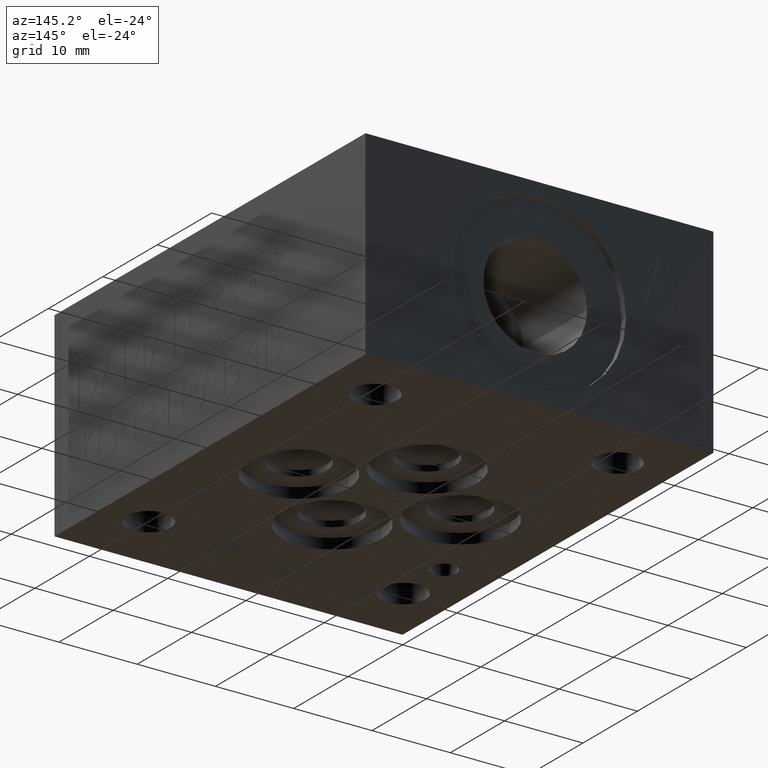
[diagram: clean part render]
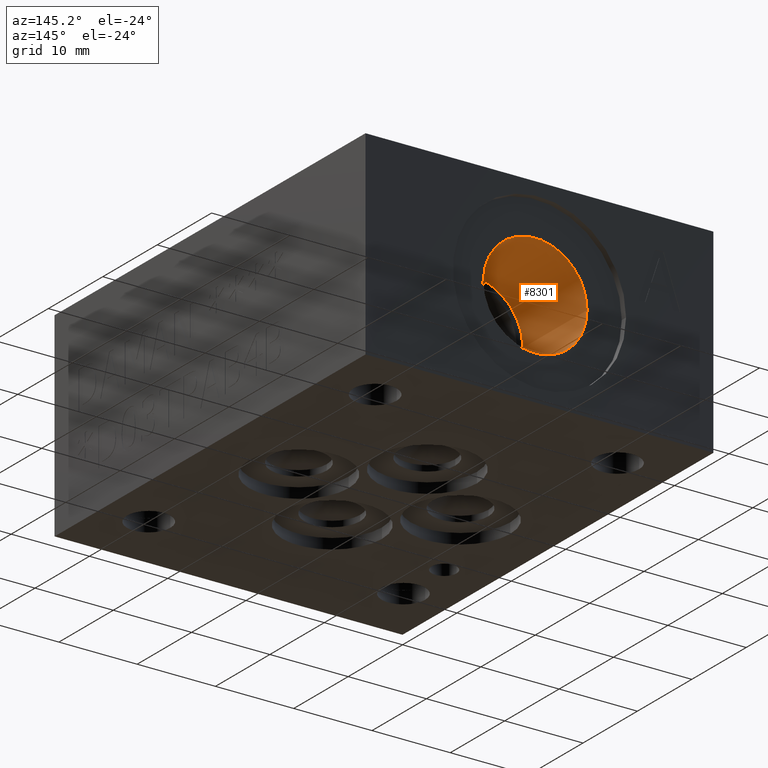
[diagram: same view with one face highlighted and labeled with its STEP entity id]
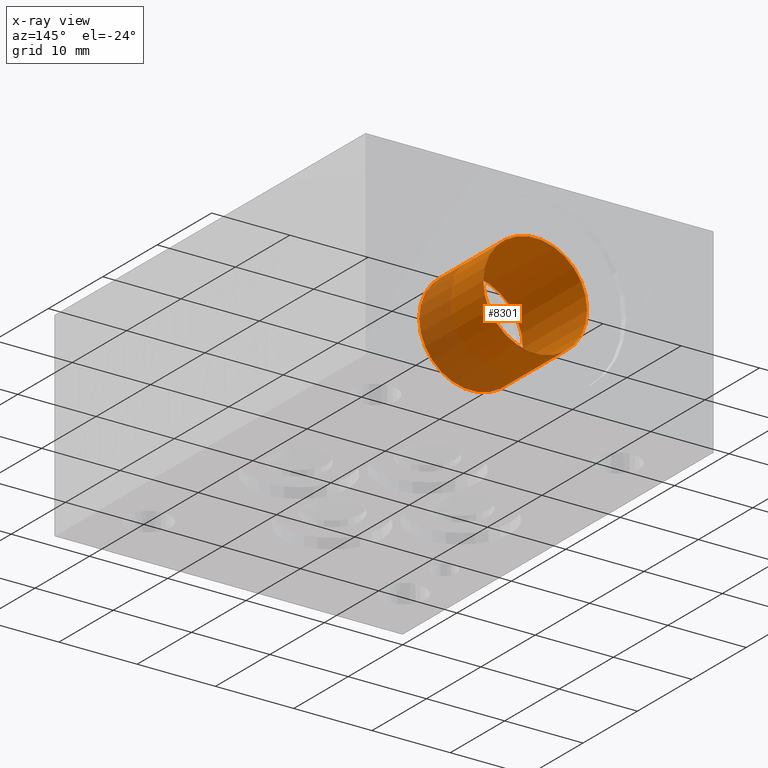
[diagram: x-ray of the same camera — body ghosted, the highlighted face saturated]
A machine part, auxiliary view. The second image highlights one B-rep face of the part: STEP entity #8301.
The next image is the same camera in x-ray: the body ghosted, the highlighted face saturated — about 25% of this face is hidden behind the body in this view.
In plain terms, the highlighted cylindrical surface (bore or boss wall) has radius 6.6294 mm, axis along (0, -1, 0).
Its self-contained STEP definition (entity closure, byte-faithful):
#28=CYLINDRICAL_SURFACE('',#8688,6.6294);
#96=CIRCLE('',#8687,6.6294);
#97=CIRCLE('',#8689,6.6294);
#871=FACE_OUTER_BOUND('',#1353,.T.);
#1353=EDGE_LOOP('',(#7315,#7316,#7317,#7318));
#2238=LINE('',#13926,#3104);
#3104=VECTOR('',#10267,6.6294);
#4046=VERTEX_POINT('',#13922);
#4047=VERTEX_POINT('',#13925);
#5152=EDGE_CURVE('',#4046,#4046,#96,.T.);
#5153=EDGE_CURVE('',#4046,#4047,#2238,.T.);
#5154=EDGE_CURVE('',#4047,#4047,#97,.T.);
#7315=ORIENTED_EDGE('',*,*,#5152,.F.);
#7316=ORIENTED_EDGE('',*,*,#5153,.T.);
#7317=ORIENTED_EDGE('',*,*,#5154,.T.);
#7318=ORIENTED_EDGE('',*,*,#5153,.F.);
#8301=ADVANCED_FACE('',(#871),#28,.F.);
#8687=AXIS2_PLACEMENT_3D('',#13923,#10263,#10264);
#8688=AXIS2_PLACEMENT_3D('',#13924,#10265,#10266);
#8689=AXIS2_PLACEMENT_3D('',#13927,#10268,#10269);
#10263=DIRECTION('center_axis',(0.,-1.,0.));
#10264=DIRECTION('ref_axis',(1.,0.,0.));
#10265=DIRECTION('center_axis',(0.,-1.,0.));
#10266=DIRECTION('ref_axis',(1.,0.,0.));
#10267=DIRECTION('',(0.,-1.,0.));
#10268=DIRECTION('center_axis',(0.,-1.,0.));
#10269=DIRECTION('ref_axis',(1.,0.,0.));
#13922=CARTESIAN_POINT('',(15.5956,56.3626,12.7));
#13923=CARTESIAN_POINT('Origin',(22.225,56.3626,12.7));
#13924=CARTESIAN_POINT('Origin',(22.225,50.4698,12.7));
#13925=CARTESIAN_POINT('',(15.5956,44.577,12.7));
#13926=CARTESIAN_POINT('',(15.5956,50.4698,12.7));
#13927=CARTESIAN_POINT('Origin',(22.225,44.577,12.7));